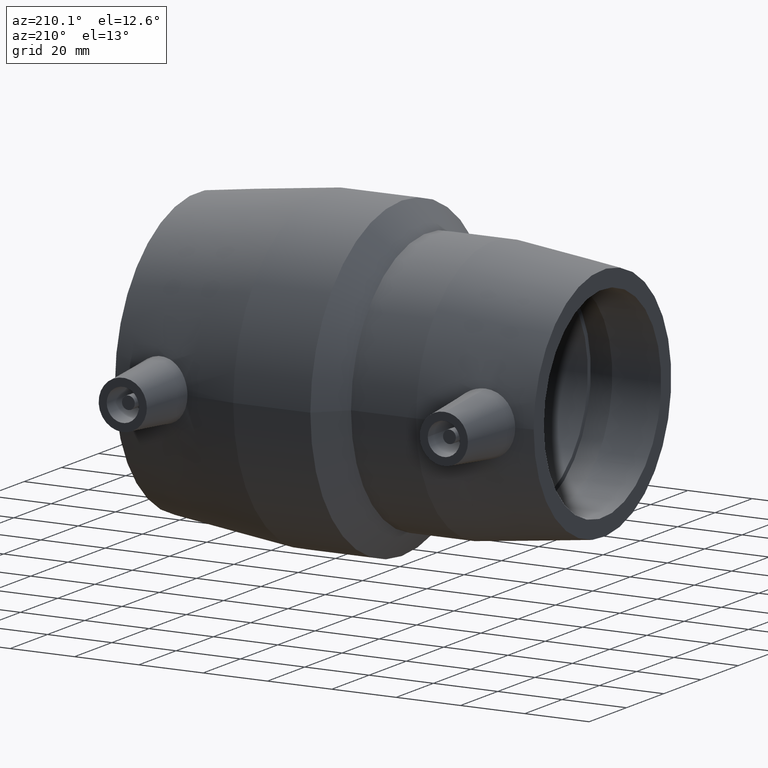
[diagram: clean part render]
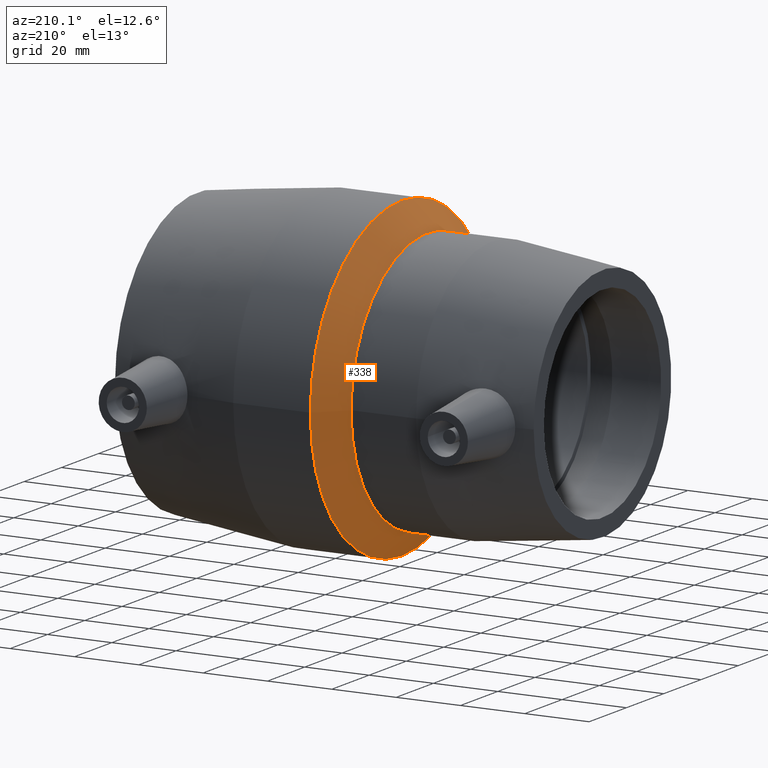
[diagram: same view with one face highlighted and labeled with its STEP entity id]
A machine part, auxiliary view. The second image highlights one B-rep face of the part: STEP entity #338.
In plain terms, the highlighted conical surface has half-angle 45 deg.
Its self-contained STEP definition (entity closure, byte-faithful):
#19=CONICAL_SURFACE('',#383,45.,45.);
#36=FACE_BOUND('',#123,.T.);
#80=FACE_OUTER_BOUND('',#122,.T.);
#122=EDGE_LOOP('',(#275));
#123=EDGE_LOOP('',(#276));
#170=CIRCLE('',#381,41.);
#172=CIRCLE('',#384,49.);
#201=VERTEX_POINT('',#644);
#203=VERTEX_POINT('',#649);
#232=EDGE_CURVE('',#201,#201,#170,.T.);
#234=EDGE_CURVE('',#203,#203,#172,.T.);
#275=ORIENTED_EDGE('',*,*,#234,.F.);
#276=ORIENTED_EDGE('',*,*,#232,.T.);
#338=ADVANCED_FACE('',(#80,#36),#19,.T.);
#381=AXIS2_PLACEMENT_3D('',#645,#466,#467);
#383=AXIS2_PLACEMENT_3D('',#648,#470,#471);
#384=AXIS2_PLACEMENT_3D('',#650,#472,#473);
#466=DIRECTION('center_axis',(1.,1.83697019872103E-16,0.));
#467=DIRECTION('ref_axis',(0.,0.,-1.));
#470=DIRECTION('center_axis',(1.,1.83697019872103E-16,0.));
#471=DIRECTION('ref_axis',(-1.72213011695957E-16,1.,0.));
#472=DIRECTION('center_axis',(1.,1.83697019872103E-16,0.));
#473=DIRECTION('ref_axis',(0.,0.,-1.));
#644=CARTESIAN_POINT('',(-8.575,41.,0.));
#645=CARTESIAN_POINT('Origin',(-8.57499999999999,9.99771030653921E-15,0.));
#648=CARTESIAN_POINT('Origin',(-4.575,1.07324983860276E-14,0.));
#649=CARTESIAN_POINT('',(-0.575000000000008,49.,0.));
#650=CARTESIAN_POINT('Origin',(-0.575000000000001,1.1467286465516E-14,0.));